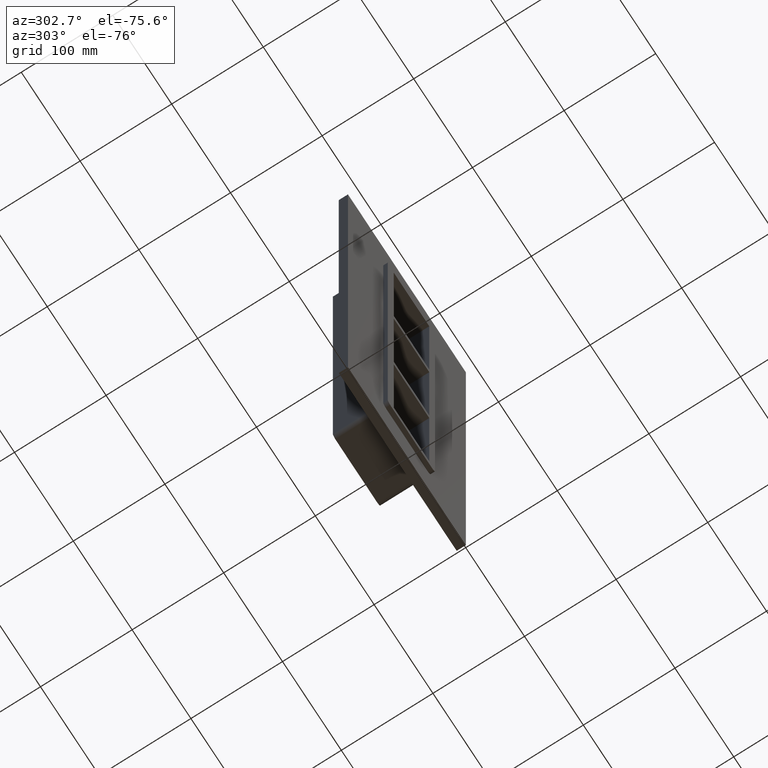
[diagram: clean part render]
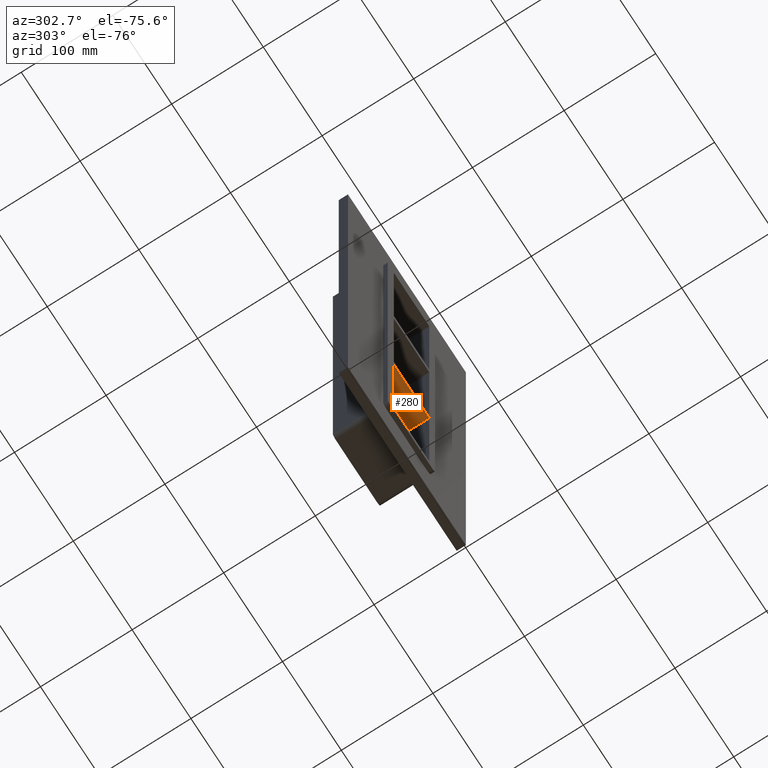
[diagram: same view with one face highlighted and labeled with its STEP entity id]
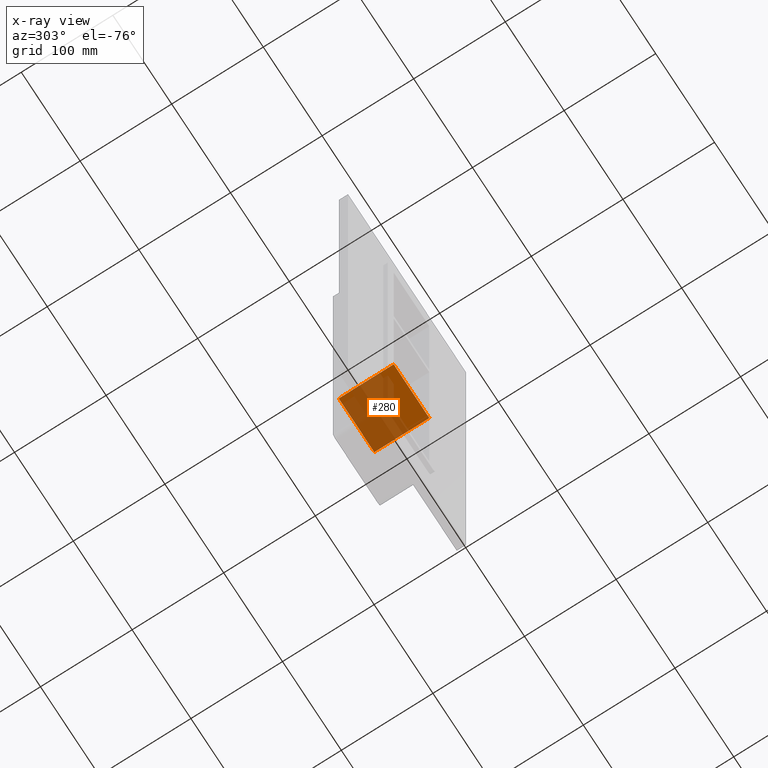
[diagram: x-ray of the same camera — body ghosted, the highlighted face saturated]
A machine part, auxiliary view. The second image highlights one B-rep face of the part: STEP entity #280.
The next image is the same camera in x-ray: the body ghosted, the highlighted face saturated — about 69% of this face is hidden behind the body in this view.
In plain terms, the highlighted planar face has unit normal (0, 0, -1).
Its self-contained STEP definition (entity closure, byte-faithful):
#241=CARTESIAN_POINT('',(30.249999999999986,-5.0,-89.749999999999943));
#242=DIRECTION('',(0.0,0.0,-1.0));
#243=DIRECTION('',(-1.0,0.0,0.0));
#244=AXIS2_PLACEMENT_3D('',#241,#242,#243);
#245=PLANE('',#244);
#246=CARTESIAN_POINT('',(30.249999999999986,-5.0,-89.749999999999943));
#247=VERTEX_POINT('',#246);
#248=CARTESIAN_POINT('',(-30.250000000002078,-5.0,-89.749999999999091));
#249=VERTEX_POINT('',#248);
#250=CARTESIAN_POINT('',(30.249999999999986,-5.0,-89.749999999999943));
#251=DIRECTION('',(-1.0,0.0,0.0));
#252=VECTOR('',#251,60.500000000002068);
#253=LINE('',#250,#252);
#254=EDGE_CURVE('',#247,#249,#253,.T.);
#255=ORIENTED_EDGE('',*,*,#254,.T.);
#256=CARTESIAN_POINT('',(-30.250000000002078,55.0,-89.749999999999091));
#257=VERTEX_POINT('',#256);
#258=CARTESIAN_POINT('',(-30.250000000000021,55.0,-89.749999999999091));
#259=DIRECTION('',(0.0,-1.0,0.0));
#260=VECTOR('',#259,60.0);
#261=LINE('',#258,#260);
#262=EDGE_CURVE('',#257,#249,#261,.T.);
#263=ORIENTED_EDGE('',*,*,#262,.F.);
#264=CARTESIAN_POINT('',(30.249999999999986,55.0,-89.749999999999943));
#265=VERTEX_POINT('',#264);
#266=CARTESIAN_POINT('',(30.249999999999986,55.0,-89.749999999999943));
#267=DIRECTION('',(-1.0,0.0,0.0));
#268=VECTOR('',#267,60.500000000002068);
#269=LINE('',#266,#268);
#270=EDGE_CURVE('',#265,#257,#269,.T.);
#271=ORIENTED_EDGE('',*,*,#270,.F.);
#272=CARTESIAN_POINT('',(30.249999999999986,-5.0,-89.749999999999943));
#273=DIRECTION('',(0.0,1.0,0.0));
#274=VECTOR('',#273,60.0);
#275=LINE('',#272,#274);
#276=EDGE_CURVE('',#247,#265,#275,.T.);
#277=ORIENTED_EDGE('',*,*,#276,.F.);
#278=EDGE_LOOP('',(#255,#263,#271,#277));
#279=FACE_OUTER_BOUND('',#278,.T.);
#280=ADVANCED_FACE('',(#279),#245,.T.);